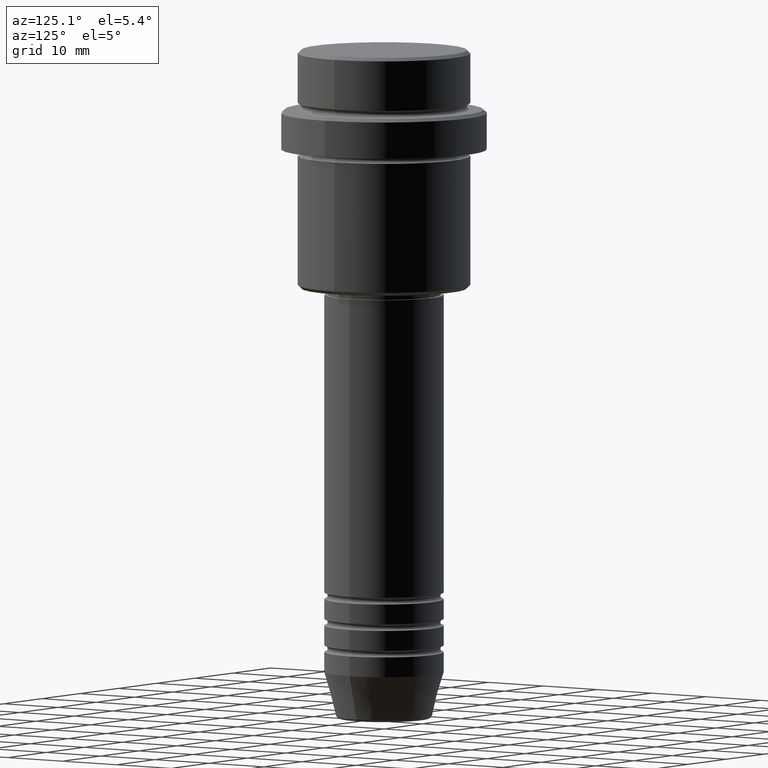
[diagram: clean part render]
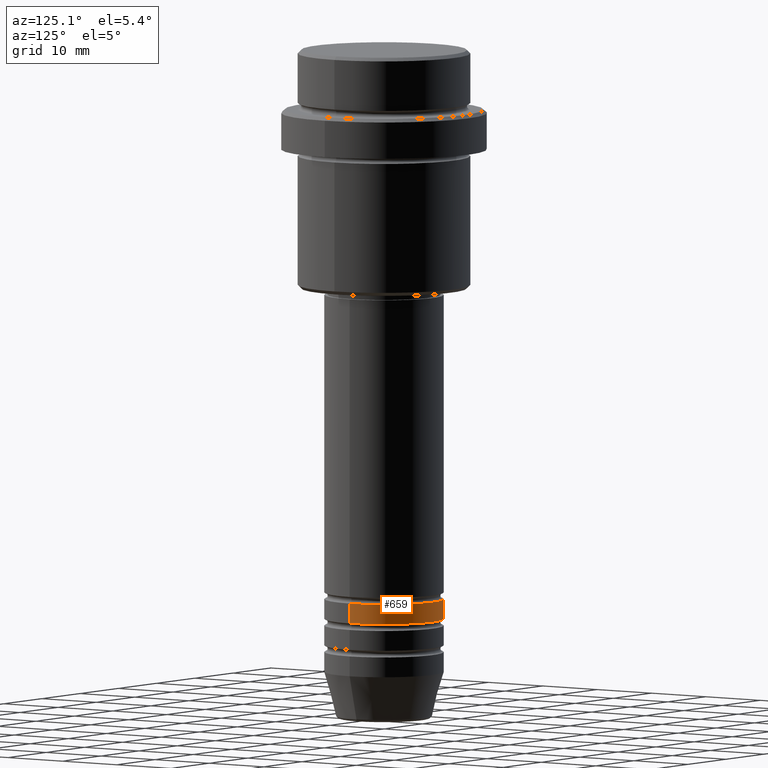
[diagram: same view with one face highlighted and labeled with its STEP entity id]
A machine part, auxiliary view. The second image highlights one B-rep face of the part: STEP entity #659.
In plain terms, the highlighted cylindrical surface (partial cylindrical patch) has radius 9 mm, axis along (-0, -0, 1).
Its self-contained STEP definition (entity closure, byte-faithful):
#69 = EDGE_LOOP ( 'NONE', ( #620, #172, #187, #547 ) ) ;
#76 = AXIS2_PLACEMENT_3D ( 'NONE', #123, #1225, #1113 ) ;
#123 = CARTESIAN_POINT ( 'NONE',  ( 0.000000000000000000, 0.000000000000000000, 0.000000000000000000 ) ) ;
#125 = CIRCLE ( 'NONE', #262, 9.000000000000000000 ) ;
#126 = AXIS2_PLACEMENT_3D ( 'NONE', #658, #986, #1417 ) ;
#165 = VECTOR ( 'NONE', #417, 1000.000000000000000 ) ;
#172 = ORIENTED_EDGE ( 'NONE', *, *, #868, .T. ) ;
#187 = ORIENTED_EDGE ( 'NONE', *, *, #1254, .F. ) ;
#246 = DIRECTION ( 'NONE',  ( -0.000000000000000000, -0.000000000000000000, 1.000000000000000000 ) ) ;
#262 = AXIS2_PLACEMENT_3D ( 'NONE', #1227, #246, #683 ) ;
#332 = VERTEX_POINT ( 'NONE', #950 ) ;
#363 = CARTESIAN_POINT ( 'NONE',  ( -9.000000000000000000, 1.102182119232617714E-15, -85.99999999999988631 ) ) ;
#380 = CARTESIAN_POINT ( 'NONE',  ( -9.000000000000000000, 1.102182119232617714E-15, -82.99999999999988631 ) ) ;
#392 = EDGE_CURVE ( 'NONE', #1234, #332, #727, .T. ) ;
#417 = DIRECTION ( 'NONE',  ( -0.000000000000000000, -0.000000000000000000, 1.000000000000000000 ) ) ;
#547 = ORIENTED_EDGE ( 'NONE', *, *, #392, .F. ) ;
#552 = DIRECTION ( 'NONE',  ( -0.000000000000000000, -0.000000000000000000, 1.000000000000000000 ) ) ;
#568 = LINE ( 'NONE', #1222, #1332 ) ;
#620 = ORIENTED_EDGE ( 'NONE', *, *, #895, .T. ) ;
#658 = CARTESIAN_POINT ( 'NONE',  ( 0.000000000000000000, 0.000000000000000000, -82.99999999999988631 ) ) ;
#659 = ADVANCED_FACE ( 'NONE', ( #667 ), #677, .T. ) ;
#667 = FACE_OUTER_BOUND ( 'NONE', #69, .T. ) ;
#677 = CYLINDRICAL_SURFACE ( 'NONE', #76, 9.000000000000000000 ) ;
#683 = DIRECTION ( 'NONE',  ( 1.000000000000000000, 0.000000000000000000, 0.000000000000000000 ) ) ;
#727 = LINE ( 'NONE', #1163, #165 ) ;
#868 = EDGE_CURVE ( 'NONE', #979, #1035, #568, .T. ) ;
#895 = EDGE_CURVE ( 'NONE', #1234, #979, #125, .T. ) ;
#950 = CARTESIAN_POINT ( 'NONE',  ( 9.000000000000000000, 0.000000000000000000, -82.99999999999988631 ) ) ;
#979 = VERTEX_POINT ( 'NONE', #363 ) ;
#986 = DIRECTION ( 'NONE',  ( -0.000000000000000000, -0.000000000000000000, 1.000000000000000000 ) ) ;
#1035 = VERTEX_POINT ( 'NONE', #380 ) ;
#1062 = CIRCLE ( 'NONE', #126, 9.000000000000000000 ) ;
#1093 = CARTESIAN_POINT ( 'NONE',  ( 9.000000000000000000, 0.000000000000000000, -85.99999999999988631 ) ) ;
#1113 = DIRECTION ( 'NONE',  ( 1.000000000000000000, 0.000000000000000000, 0.000000000000000000 ) ) ;
#1163 = CARTESIAN_POINT ( 'NONE',  ( 9.000000000000000000, 0.000000000000000000, 0.000000000000000000 ) ) ;
#1222 = CARTESIAN_POINT ( 'NONE',  ( -9.000000000000000000, 1.102182119232617714E-15, 0.000000000000000000 ) ) ;
#1225 = DIRECTION ( 'NONE',  ( -0.000000000000000000, -0.000000000000000000, 1.000000000000000000 ) ) ;
#1227 = CARTESIAN_POINT ( 'NONE',  ( 0.000000000000000000, 0.000000000000000000, -85.99999999999988631 ) ) ;
#1234 = VERTEX_POINT ( 'NONE', #1093 ) ;
#1254 = EDGE_CURVE ( 'NONE', #332, #1035, #1062, .T. ) ;
#1332 = VECTOR ( 'NONE', #552, 1000.000000000000000 ) ;
#1417 = DIRECTION ( 'NONE',  ( 1.000000000000000000, 0.000000000000000000, 0.000000000000000000 ) ) ;